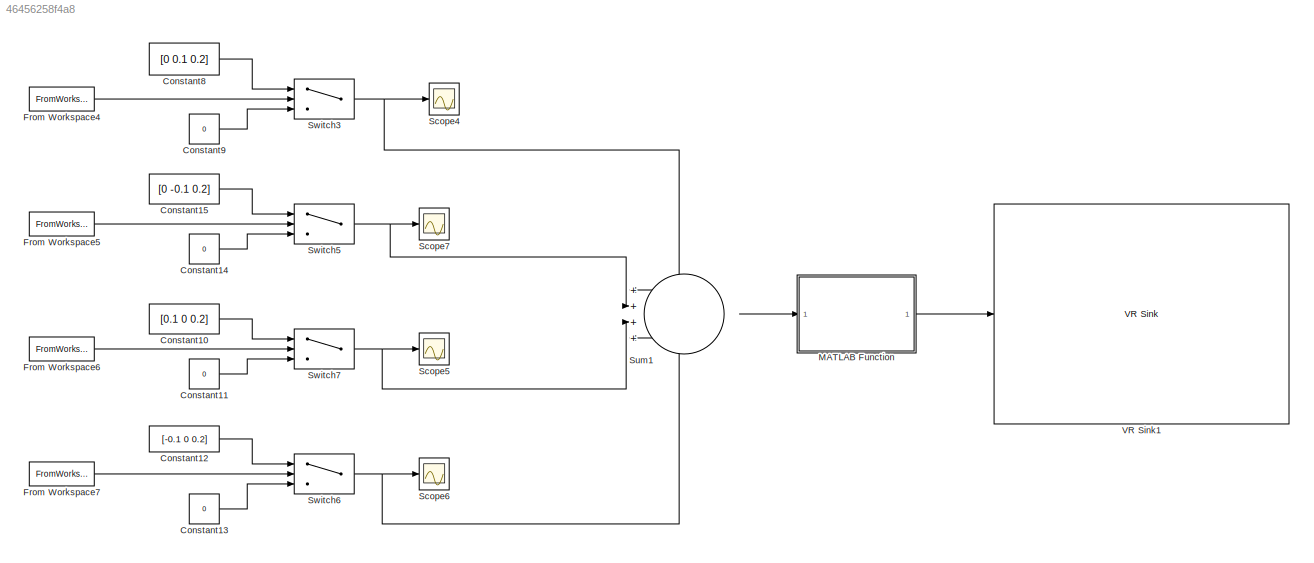
MODEL slx_46456258f4a8
KIND model
CONFIG AbsTol = auto
CONFIG EnableMultiTasking = off
CONFIG FixedStep = auto
CONFIG MaxStep = auto
CONFIG MinStep = auto
CONFIG RelTol = 1e-3
CONFIG SampleTimeConstraint = Unconstrained
CONFIG SolverName = VariableStepAuto
CONFIG StartTime = 0.0
CONFIG StopTime = 30
BLOCK [Constant] Constant10
  Value = [0.1 0 0.2]
BLOCK [Constant] Constant11
  Value = 0
BLOCK [Constant] Constant12
  Value = [-0.1 0 0.2]
BLOCK [Constant] Constant13
  Value = 0
BLOCK [Constant] Constant14
  Value = 0
BLOCK [Constant] Constant15
  Value = [0 -0.1 0.2]
BLOCK [Constant] Constant8
  Value = [0 0.1 0.2]
BLOCK [Constant] Constant9
  Value = 0
BLOCK [FromWorkspace] From Workspace4
  SampleTime = 0.05
  VariableName = musclebr
BLOCK [FromWorkspace] From Workspace5
  SampleTime = 0.05
  VariableName = musclebl
BLOCK [FromWorkspace] From Workspace6
  SampleTime = 0.05
  VariableName = muscletr
BLOCK [FromWorkspace] From Workspace7
  SampleTime = 0.05
  VariableName = muscletl
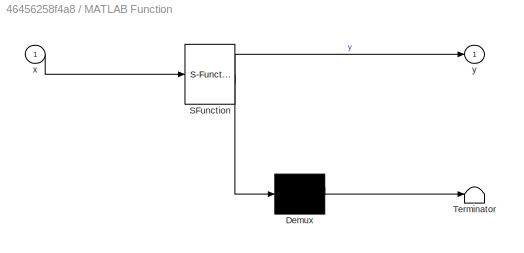
BLOCK [SubSystem] MATLAB Function
  ErrorFcn = Stateflow.Translate.translate
  PermitHierarchicalResolution = ExplicitOnly
  SFBlockType = MATLAB Function
  TreatAsAtomicUnit = on
BLOCK [Demux] MATLAB Function/ Demux 
  Outputs = 1
BLOCK [S-Function] MATLAB Function/ SFunction 
  EnableBusSupport = on
  FunctionName = sf_sfun
  PortCounts = [1 2]
  SFcnIsStateOwnerBlock = off
  SFunctionDeploymentMode = off
  Tag = Stateflow S-Function 2
BLOCK [Terminator] MATLAB Function/ Terminator 
BLOCK [Inport] MATLAB Function/x
BLOCK [Outport] MATLAB Function/y
BLOCK [Scope] Scope4
  Floating = off
  NumInputPorts = 1
  ScopeSpecificationString = Simulink.scopes.TimeScopeBlockCfg('CurrentConfiguration', extmgr.ConfigurationSet(extmgr.Configuration('Core','General UI',true),extmgr.Configuration('Core','Source UI',true),extmgr.Configuration('Sources','WiredSimulink',true,'DataLoggingVariableName','ScopeData1'),extmgr.Configuration('Visuals','Time Domain',true,'SerializedDisplays',{struct('MinYLimReal','-0.025','MaxYLimReal','0.225','YLabelRe...<+1564ch>
BLOCK [Scope] Scope5
  Floating = off
  NumInputPorts = 1
  ScopeSpecificationString = Simulink.scopes.TimeScopeBlockCfg('CurrentConfiguration', extmgr.ConfigurationSet(extmgr.Configuration('Core','General UI',true),extmgr.Configuration('Core','Source UI',true),extmgr.Configuration('Sources','WiredSimulink',true,'DataLoggingVariableName','ScopeData2'),extmgr.Configuration('Visuals','Time Domain',true,'SerializedDisplays',{struct('MinYLimReal','-0.025','MaxYLimReal','0.225','YLabelRe...<+1569ch>
BLOCK [Scope] Scope6
  Floating = off
  NumInputPorts = 1
  ScopeSpecificationString = Simulink.scopes.TimeScopeBlockCfg('CurrentConfiguration', extmgr.ConfigurationSet(extmgr.Configuration('Core','General UI',true),extmgr.Configuration('Core','Source UI',true),extmgr.Configuration('Sources','WiredSimulink',true,'DataLoggingVariableName','ScopeData3'),extmgr.Configuration('Visuals','Time Domain',true,'SerializedDisplays',{struct('MinYLimReal','-0.1375','MaxYLimReal','0.2375','YLabel...<+1576ch>
BLOCK [Scope] Scope7
  Floating = off
  NumInputPorts = 1
  ScopeSpecificationString = Simulink.scopes.TimeScopeBlockCfg('CurrentConfiguration', extmgr.ConfigurationSet(extmgr.Configuration('Core','General UI',true),extmgr.Configuration('Core','Source UI',true),extmgr.Configuration('Sources','WiredSimulink',true),extmgr.Configuration('Visuals','Time Domain',true,'SerializedDisplays',{struct('MinYLimReal','-0.1375','MaxYLimReal','0.2375','YLabelReal','','MinYLimMag','0.00000','MaxYLi...<+1539ch>
BLOCK [Sum] Sum1
  Inputs = ++++
BLOCK [Switch] Switch3
  Criteria = u2 > Threshold
  InputSameDT = off
  SaturateOnIntegerOverflow = off
  Threshold = 0.2
BLOCK [Switch] Switch5
  Criteria = u2 > Threshold
  InputSameDT = off
  SaturateOnIntegerOverflow = off
  Threshold = 0.2
BLOCK [Switch] Switch6
  Criteria = u2 > Threshold
  InputSameDT = off
  SaturateOnIntegerOverflow = off
  Threshold = 0.2
BLOCK [Switch] Switch7
  Criteria = u2 > Threshold
  InputSameDT = off
  SaturateOnIntegerOverflow = off
  Threshold = 0.3
BLOCK [Reference] VR Sink1  REF=vrlib/VR Sink
  InstantiateOnLoad = on
  SourceBlock = vrlib/VR Sink
  SourceType = Virtual Reality Sink
LINE Constant10:1 -> Switch7:1
LINE Constant11:1 -> Switch7:3
LINE Constant12:1 -> Switch6:1
LINE Constant13:1 -> Switch6:3
LINE Constant14:1 -> Switch5:3
LINE Constant15:1 -> Switch5:1
LINE Constant8:1 -> Switch3:1
LINE Constant9:1 -> Switch3:3
LINE From Workspace4:1 -> Switch3:2
LINE From Workspace5:1 -> Switch5:2
LINE From Workspace6:1 -> Switch7:2
LINE From Workspace7:1 -> Switch6:2
LINE MATLAB Function:1 -> VR Sink1:1
LINE Sum1:1 -> MATLAB Function:1
NET Switch3:1 -> Scope4:1, Sum1:1
NET Switch5:1 -> Scope7:1, Sum1:2
NET Switch6:1 -> Scope6:1, Sum1:4
NET Switch7:1 -> Scope5:1, Sum1:3
note: NET lines group one-source signal fan-out (src -> all destinations, sorted); 1:1 wires keep LINE
CHART MATLAB Function states=1 transitions=1
  STATE_LABEL 'eML_blk_kernel()'
  STATE_LABEL 'SCRIPT:\nfunction y = fcn(x)\n      \n    if x(1)^2 + x(2)^2 <= 0.1^2\n        y = [x(1), x(2), 0.2]; % Mantieni dimensioni fisse\n    elseif x(1) > 0.01 && x(2) > 0.01 % caso primo quadrante\n        y = [0.07, 0.07, 0.2];\n    elseif x(1) < 0.01 && x(2) > 0.01 % caso secondo quadrante\n        y = [-0.07, 0.07, 0.2];\n    elseif x(1) < 0.01 && x(2) < 0.01 % caso terzo quadrante\n        y = [-0.07, -0.07,...<+181ch>'
CHART  states=0 transitions=0
